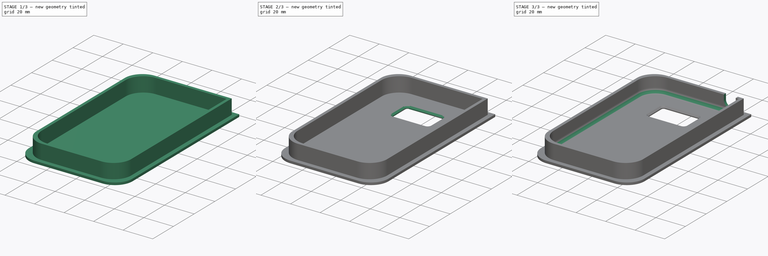
[diagram: build sequence overview — one tinted view per stage of 3, left to right]
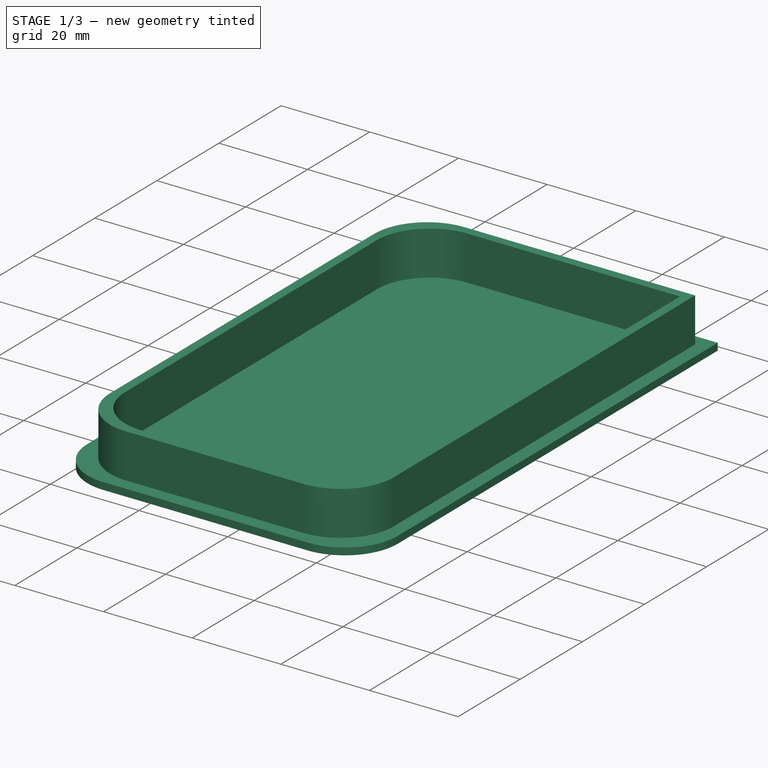
[diagram: stage 1 of 3 — iso view after this stage's code; geometry added in this stage tinted green]
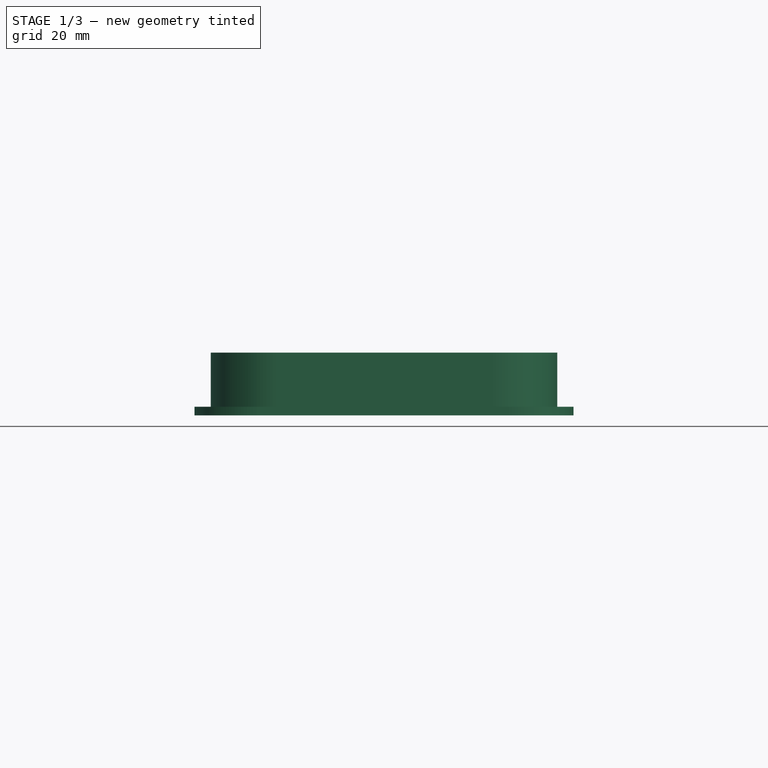
[diagram: stage 1 of 3 — front view after this stage's code; geometry added in this stage tinted green]
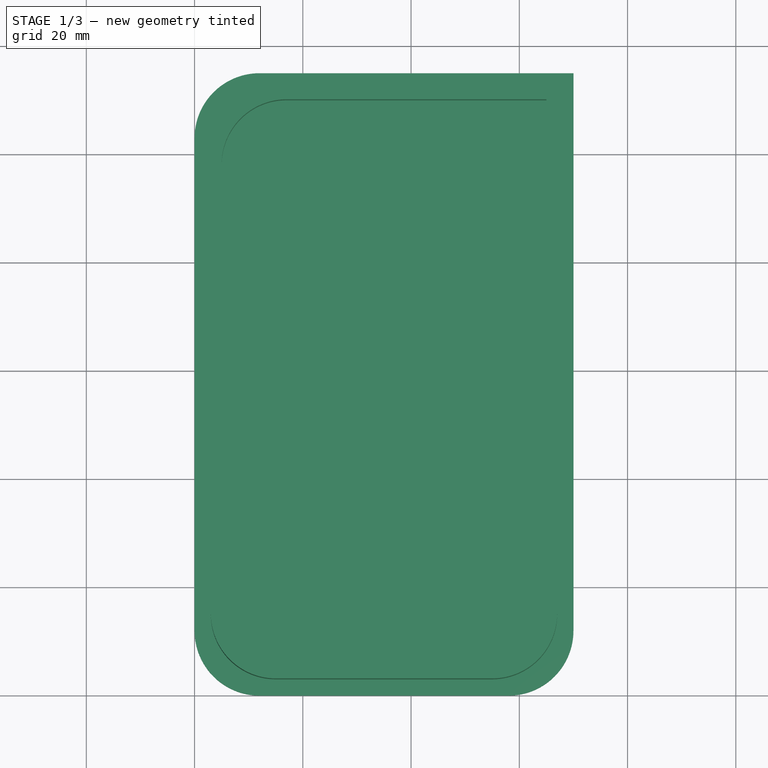
[diagram: stage 1 of 3 — top view after this stage's code; geometry added in this stage tinted green]
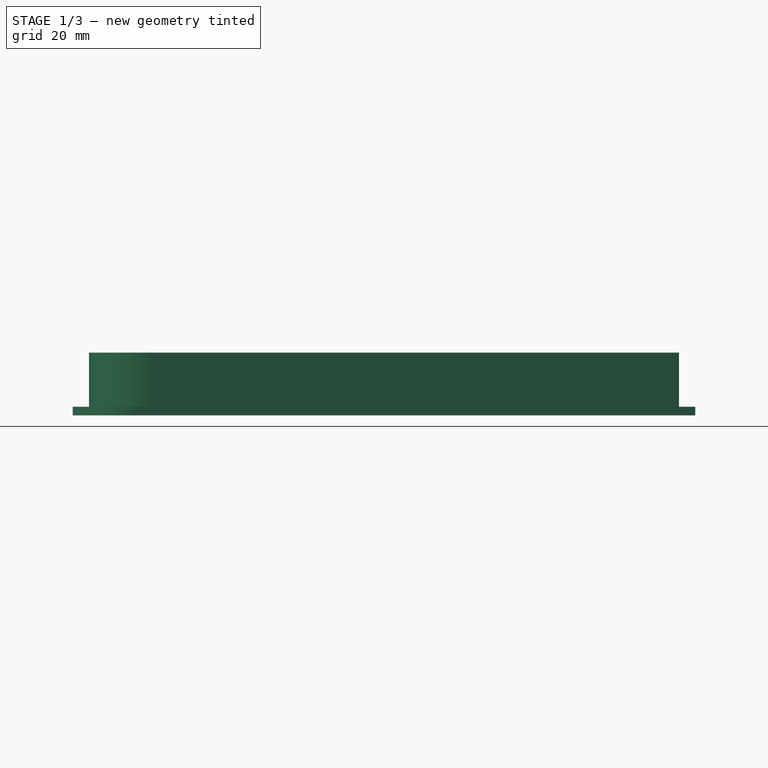
[diagram: stage 1 of 3 — right view after this stage's code; geometry added in this stage tinted green]
FCSTD DOCUMENT  (FreeCAD 0.16R6703 (Git))
Label: terminal_v2_cap
License: All rights reserved
LicenseURL: http://en.wikipedia.org/wiki/All_rights_reserved
objects: Sketcher::SketchObject×5, PartDesign::Pocket×3, PartDesign::Pad×2, PartDesign::Chamfer×1, PartDesign::Fillet×1
note: 17 computed .brp shape members not serialized (recipe doc carries the construction recipe); baked Part::Feature solids carry a one-line shape summary decoded from their .brp

FEATURE [Sketcher::SketchObject] Sketch
  sketch-geometry (7):
    g0: LineSegment StartX=12 StartY=0 StartZ=0 EndX=58 EndY=0 EndZ=0
    g1: LineSegment StartX=70 StartY=12 StartZ=0 EndX=70 EndY=115 EndZ=0
    g2: LineSegment StartX=70 StartY=115 StartZ=0 EndX=12 EndY=115 EndZ=0
    g3: LineSegment StartX=0 StartY=103 StartZ=0 EndX=0 EndY=12 EndZ=0
    g4: ArcOfCircle CenterX=12 CenterY=103 CenterZ=0 NormalX=0 NormalY=0 NormalZ=1 Radius=12 StartAngle=1.5708 EndAngle=3.14159
    g5: ArcOfCircle CenterX=12 CenterY=12 CenterZ=0 NormalX=0 NormalY=0 NormalZ=1 Radius=12 StartAngle=3.14159 EndAngle=4.71239
    g6: ArcOfCircle CenterX=58 CenterY=12 CenterZ=0 NormalX=0 NormalY=0 NormalZ=1 Radius=12 StartAngle=4.71239 EndAngle=6.28319
  constraints (18):
    c: Coincident(g1,g2)
    c: Horizontal(g0)
    c: Horizontal(g2)
    c: Vertical(g1)
    c: Vertical(g3)
    c: Tangent(g2,g4) = -1.5708
    c: Tangent(g3,g4) = -1.5708
    c: Tangent(g0,g5) = -1.5708
    c: Tangent(g3,g5) = -1.5708
    c: Tangent(g1,g6) = -1.5708
    c: Tangent(g0,g6) = -1.5708
    c: DistanceX(g3,g1) = 70
    c: Equal(g4,g5)
    c: Equal(g5,g6)
    c: PointOnObject(g0,g-1)
    c: PointOnObject(g3,g-2)
    c: DistanceY(g0,g1) = 115
    c: Radius(g5) = 12
FEATURE [PartDesign::Pad] Pad
  Length = 1.6
  Length2 = 100
  Sketch = -> Sketch
  Type = 0
FEATURE [Sketcher::SketchObject] Sketch001
  Placement = pos=(0,0,1.6) rot=(0,0,1;0rad)
  Support = -> Pad [Face9]
  sketch-geometry (14):
    g0: LineSegment StartX=15 StartY=3 StartZ=0 EndX=55 EndY=3 EndZ=0
    g1: LineSegment StartX=67 StartY=15 StartZ=0 EndX=67 EndY=112 EndZ=0
    g2: LineSegment StartX=67 StartY=112 StartZ=0 EndX=15 EndY=112 EndZ=0
    g3: LineSegment StartX=3 StartY=100 StartZ=0 EndX=3 EndY=15 EndZ=0
    g4: ArcOfCircle CenterX=15 CenterY=100 CenterZ=0 NormalX=0 NormalY=0 NormalZ=1 Radius=12 StartAngle=1.5708 EndAngle=3.14159
    g5: ArcOfCircle CenterX=15 CenterY=15 CenterZ=0 NormalX=0 NormalY=0 NormalZ=1 Radius=12 StartAngle=3.14159 EndAngle=4.71239
    g6: ArcOfCircle CenterX=55 CenterY=15 CenterZ=0 NormalX=0 NormalY=0 NormalZ=1 Radius=12 StartAngle=4.71239 EndAngle=6.28319
    g7: LineSegment StartX=17 StartY=5 StartZ=0 EndX=53 EndY=5 EndZ=0
    g8: LineSegment StartX=65 StartY=17 StartZ=0 EndX=65 EndY=110 EndZ=0
    g9: LineSegment StartX=65 StartY=110 StartZ=0 EndX=17 EndY=110 EndZ=0
    g10: LineSegment StartX=5 StartY=98 StartZ=0 EndX=5 EndY=17 EndZ=0
    g11: ArcOfCircle CenterX=17 CenterY=98 CenterZ=0 NormalX=0 NormalY=0 NormalZ=1 Radius=12 StartAngle=1.5708 EndAngle=3.14159
    g12: ArcOfCircle CenterX=17 CenterY=17 CenterZ=0 NormalX=0 NormalY=0 NormalZ=1 Radius=12 StartAngle=3.14159 EndAngle=4.71239
    g13: ArcOfCircle CenterX=53 CenterY=17 CenterZ=0 NormalX=0 NormalY=0 NormalZ=1 Radius=12 StartAngle=4.71239 EndAngle=6.28319
  constraints (36):
    c: Coincident(g1,g2)
    c: Horizontal(g0)
    c: Horizontal(g2)
    c: Vertical(g1)
    c: Vertical(g3)
    c: Tangent(g2,g4) = -1.5708
    c: Tangent(g3,g4) = -1.5708
    c: Tangent(g0,g5) = -1.5708
    c: Tangent(g3,g5) = -1.5708
    c: Tangent(g1,g6) = -1.5708
    c: Tangent(g0,g6) = -1.5708
    c: DistanceX(g3,g1) = 64
    c: Equal(g4,g5)
    c: Equal(g5,g6)
    c: DistanceY(g0,g1) = 109
    c: Radius(g5) = 12
    c: DistanceX(g-1,g3) = 3
    c: DistanceY(g-1,g0) = 3
    c: Coincident(g8,g9)
    c: Horizontal(g7)
    c: Horizontal(g9)
    c: Vertical(g8)
    c: Vertical(g10)
    c: Tangent(g9,g11) = -1.5708
    c: Tangent(g10,g11) = -1.5708
    c: Tangent(g7,g12) = -1.5708
    c: Tangent(g10,g12) = -1.5708
    c: Tangent(g8,g13) = -1.5708
    c: Tangent(g7,g13) = -1.5708
    c: DistanceX(g10,g8) = 60
    c: Equal(g11,g12)
    c: Equal(g12,g13)
    c: DistanceY(g7,g8) = 105
    c: Equal(g5,g12) = 12
    c: DistanceX(g8,g1) = 2
    c: DistanceY(g8,g1) = 2
FEATURE [PartDesign::Pad] Pad001
  Length = 10
  Length2 = 100
  Sketch = -> Sketch001
  Type = 0
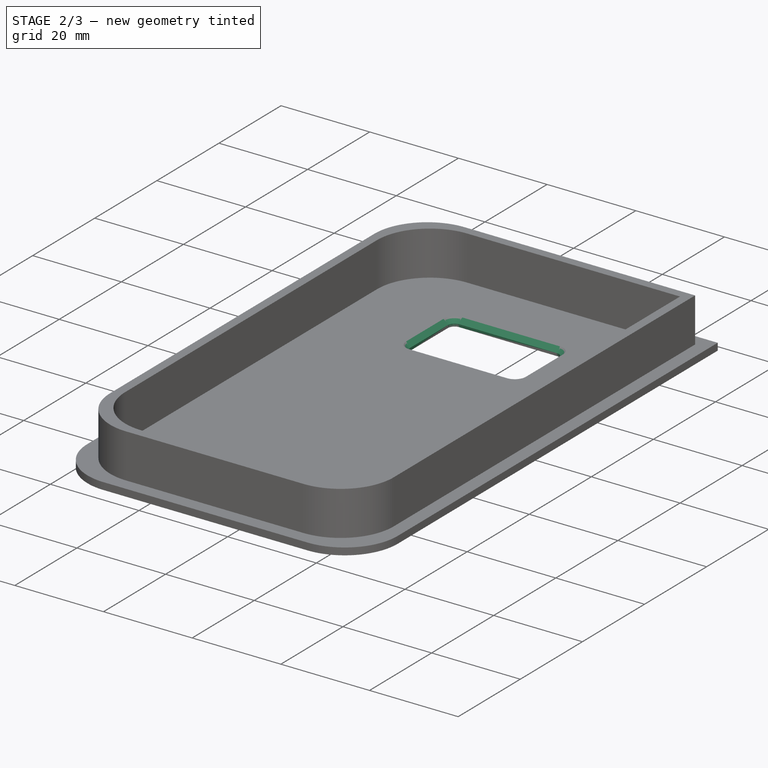
[diagram: stage 2 of 3 — iso view after this stage's code; geometry added in this stage tinted green]
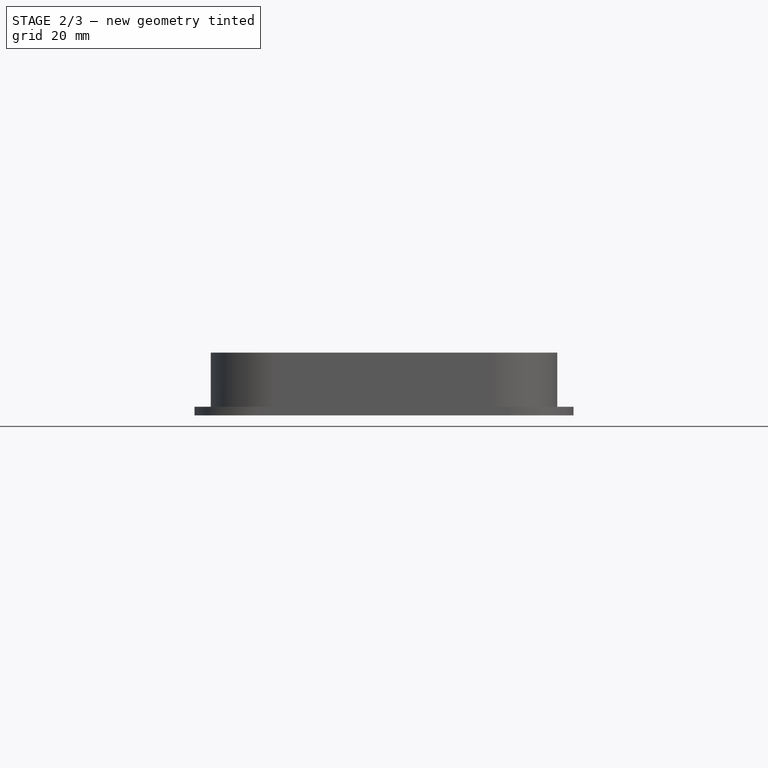
[diagram: stage 2 of 3 — front view after this stage's code; geometry added in this stage tinted green]
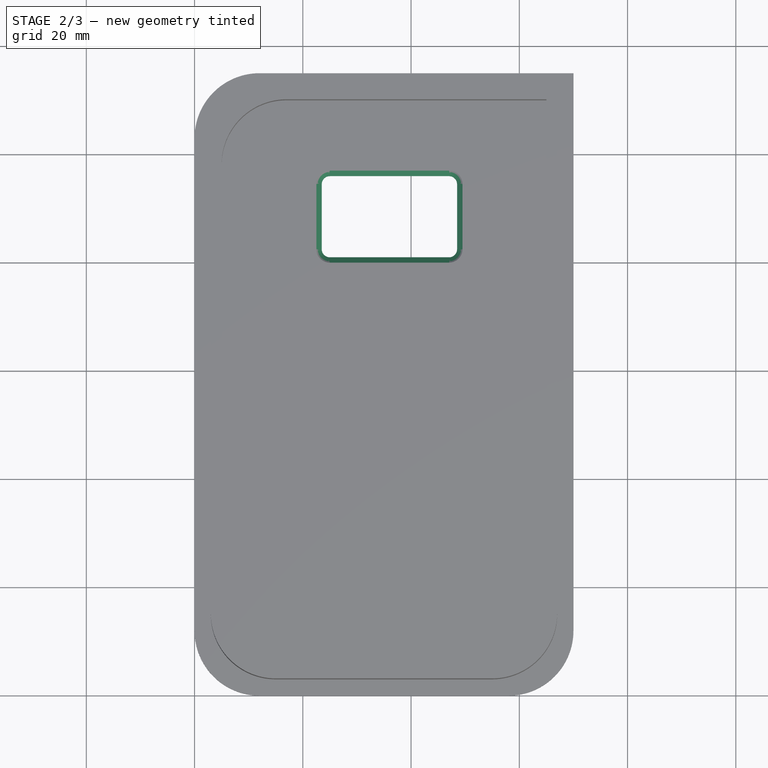
[diagram: stage 2 of 3 — top view after this stage's code; geometry added in this stage tinted green]
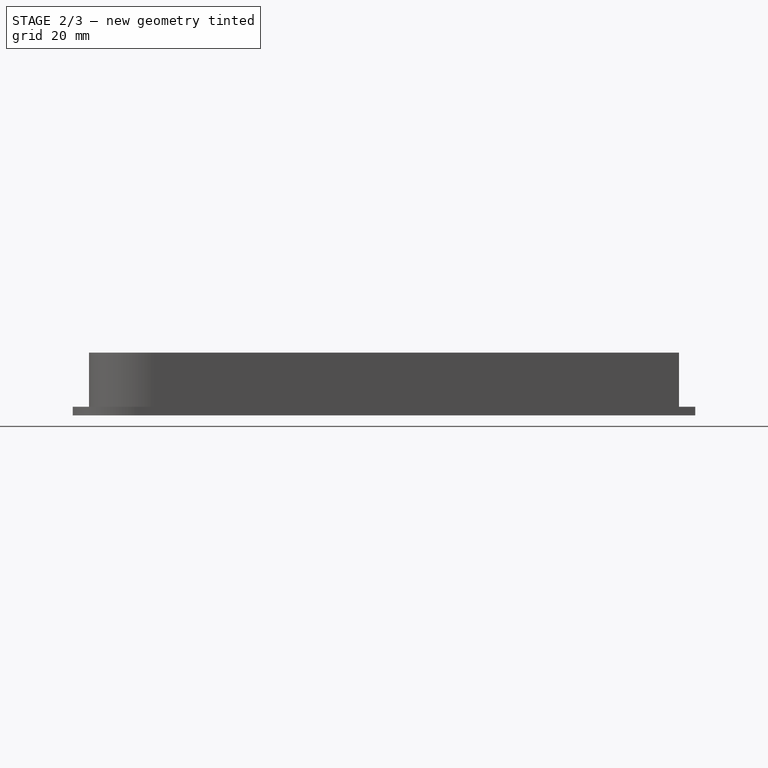
[diagram: stage 2 of 3 — right view after this stage's code; geometry added in this stage tinted green]
FEATURE [Sketcher::SketchObject] Sketch004
  Placement = pos=(67,0,0) rot=(0.57735,0.57735,0.57735;2.0944rad)
  Support = -> Pad001 [Face14]
  sketch-geometry (1):
    g0: Circle CenterX=-62 CenterY=7.1 CenterZ=0 NormalX=0 NormalY=0 NormalZ=1 Radius=1
  constraints (3):
    c: DistanceY(g-1,g0) = 7.1
    c: Radius(g0) = 1
    c: DistanceX(g0,g-1) = 62
FEATURE [PartDesign::Pocket] Pocket
  Length = 5
  Sketch = -> Sketch004
  Type = 1
FEATURE [Sketcher::SketchObject] Sketch005
  Placement = pos=(0,0,1.6) rot=(0,0,1;0rad)
  Support = -> Pocket [Face5]
  sketch-geometry (8):
    g0: LineSegment StartX=25 StartY=96 StartZ=0 EndX=47 EndY=96 EndZ=0
    g1: LineSegment StartX=48.5 StartY=94.5 StartZ=0 EndX=48.5 EndY=82.5 EndZ=0
    g2: LineSegment StartX=47 StartY=81 StartZ=0 EndX=25 EndY=81 EndZ=0
    g3: LineSegment StartX=23.5 StartY=82.5 StartZ=0 EndX=23.5 EndY=94.5 EndZ=0
    g4: ArcOfCircle CenterX=25 CenterY=94.5 CenterZ=0 NormalX=0 NormalY=0 NormalZ=1 Radius=1.5 StartAngle=1.5708 EndAngle=3.14159
    g5: ArcOfCircle CenterX=25 CenterY=82.5 CenterZ=0 NormalX=0 NormalY=0 NormalZ=1 Radius=1.5 StartAngle=3.14159 EndAngle=4.71239
    g6: ArcOfCircle CenterX=47 CenterY=82.5 CenterZ=0 NormalX=0 NormalY=0 NormalZ=1 Radius=1.5 StartAngle=4.71239 EndAngle=6.28319
    g7: ArcOfCircle CenterX=47 CenterY=94.5 CenterZ=0 NormalX=0 NormalY=0 NormalZ=1 Radius=1.5 StartAngle=0 EndAngle=1.5708
  constraints (20):
    c: Horizontal(g0)
    c: Horizontal(g2)
    c: Vertical(g1)
    c: Vertical(g3)
    c: Tangent(g0,g4) = 1.5708
    c: Tangent(g3,g4) = 1.5708
    c: Tangent(g2,g5) = 1.5708
    c: Tangent(g3,g5) = 1.5708
    c: Tangent(g1,g6) = 1.5708
    c: Tangent(g2,g6) = 1.5708
    c: Tangent(g0,g7) = 1.5708
    c: Tangent(g1,g7) = 1.5708
    c: Equal(g4,g5)
    c: Equal(g5,g7)
    c: Equal(g7,g6)
    c: Radius(g7) = 1.5
    c: DistanceX(g3,g1) = 25
    c: DistanceY(g2,g0) = 15
    c: DistanceX(g-1,g3) = 23.5
    c: DistanceY(g-1,g2) = 81
FEATURE [PartDesign::Pocket] Pocket001
  Length = 5
  Sketch = -> Sketch005
  Type = 0
FEATURE [PartDesign::Chamfer] Chamfer
  Base = -> Pocket001 [Edge37,Edge52,Edge50,Edge48,Edge46,Edge44,Edge42,Edge40]
  Size = 1
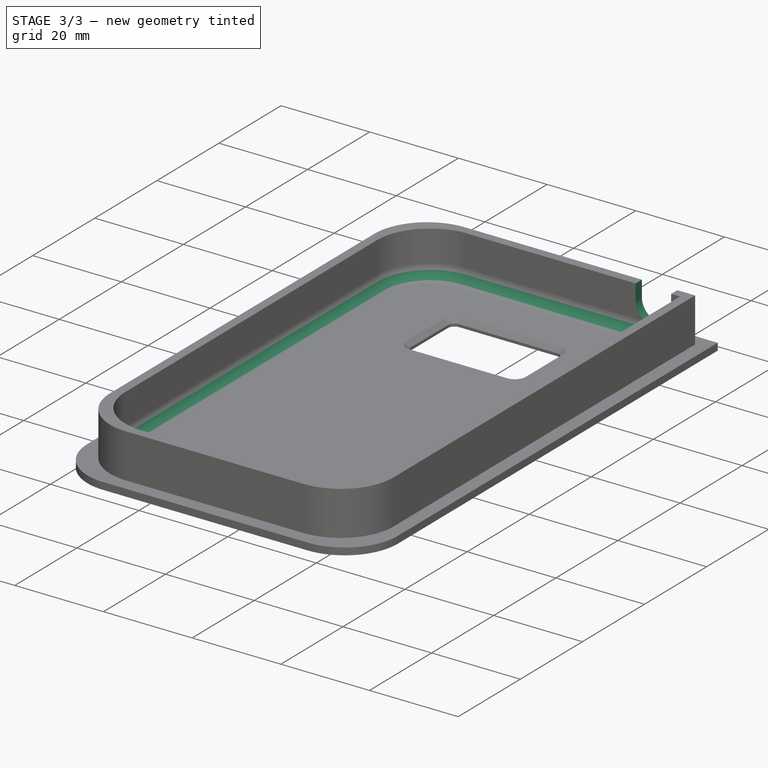
[diagram: stage 3 of 3 — iso view after this stage's code; geometry added in this stage tinted green]
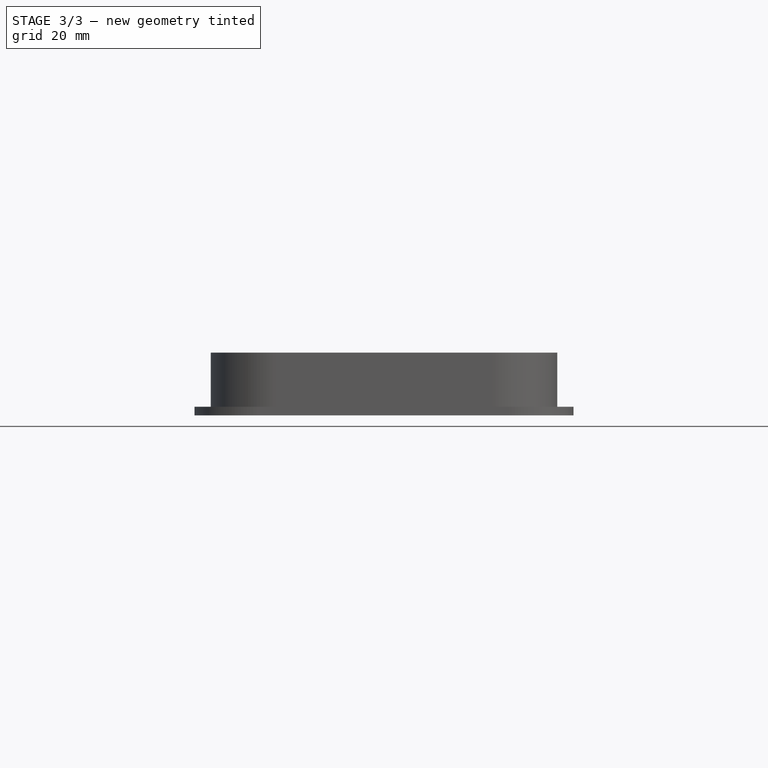
[diagram: stage 3 of 3 — front view after this stage's code; geometry added in this stage tinted green]
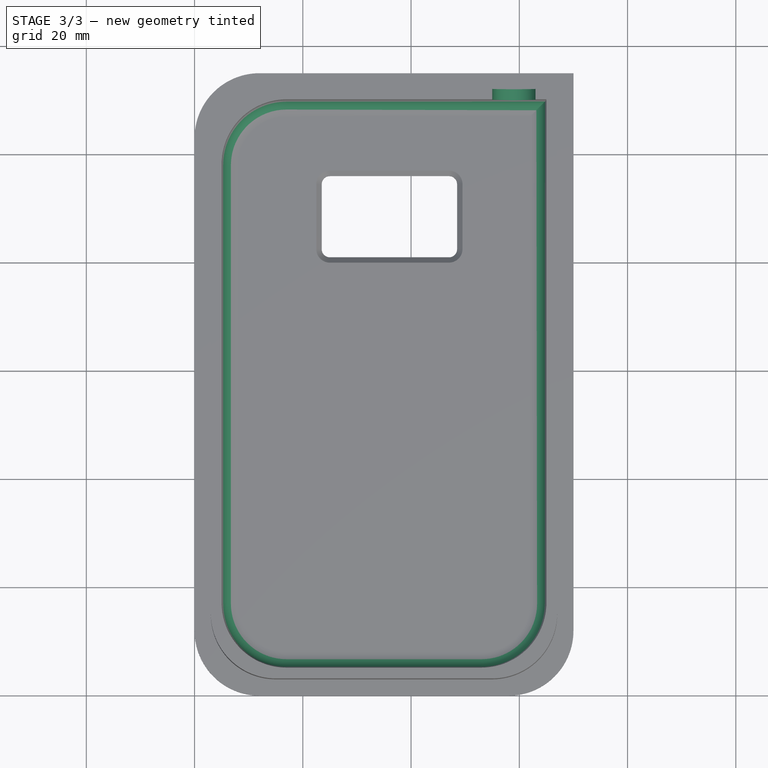
[diagram: stage 3 of 3 — top view after this stage's code; geometry added in this stage tinted green]
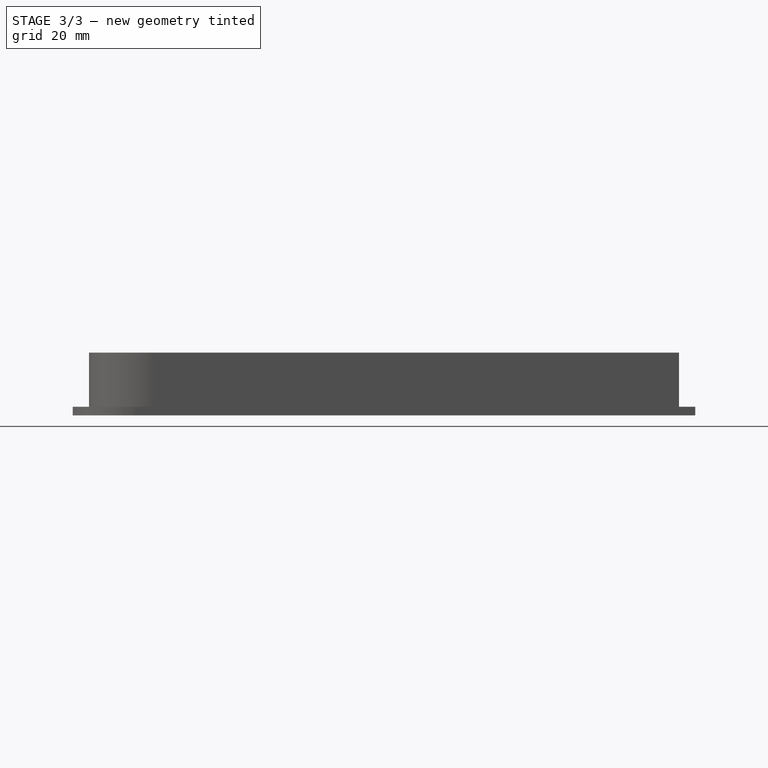
[diagram: stage 3 of 3 — right view after this stage's code; geometry added in this stage tinted green]
FEATURE [PartDesign::Fillet] Fillet
  Base = -> Chamfer [Edge40,Edge38,Edge42,Edge37,Edge39,Edge41]
  Radius = 3
FEATURE [Sketcher::SketchObject] Sketch006
  Placement = pos=(0,112,0) rot=(0,0.707107,0.707107;3.14159rad)
  Support = -> Fillet [Face37]
  sketch-geometry (4):
    g0: ArcOfCircle CenterX=-59 CenterY=18 CenterZ=0 NormalX=0 NormalY=0 NormalZ=1 Radius=4 StartAngle=4e-12 EndAngle=3.14159
    g1: ArcOfCircle CenterX=-59 CenterY=8 CenterZ=0 NormalX=0 NormalY=0 NormalZ=1 Radius=4 StartAngle=3.14159 EndAngle=6.28319
    g2: LineSegment StartX=-63 StartY=18 StartZ=0 EndX=-63 EndY=8 EndZ=0
    g3: LineSegment StartX=-55 StartY=18 StartZ=0 EndX=-55 EndY=8 EndZ=0
  constraints (10):
    c: Tangent(g0,g3) = 1.5708
    c: Tangent(g0,g2) = -1.5708
    c: Tangent(g2,g1) = -1.5708
    c: Tangent(g3,g1) = 1.5708
    c: Vertical(g2)
    c: Equal(g0,g1)
    c: DistanceX(g0,g0) = 8
    c: DistanceY(g-1,g1) = 8
    c: DistanceY(g1,g0) = 10
    c: DistanceX(g1,g-1) = 59
FEATURE [PartDesign::Pocket] Pocket002
  Length = 5
  Sketch = -> Sketch006
  Type = 0
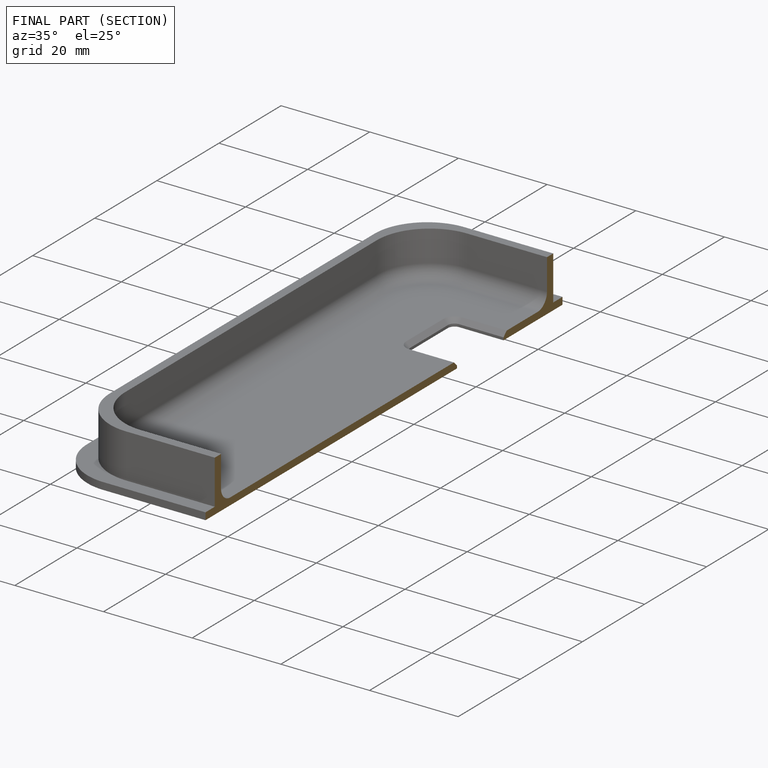
[diagram: finished part — half-section view (interior)]
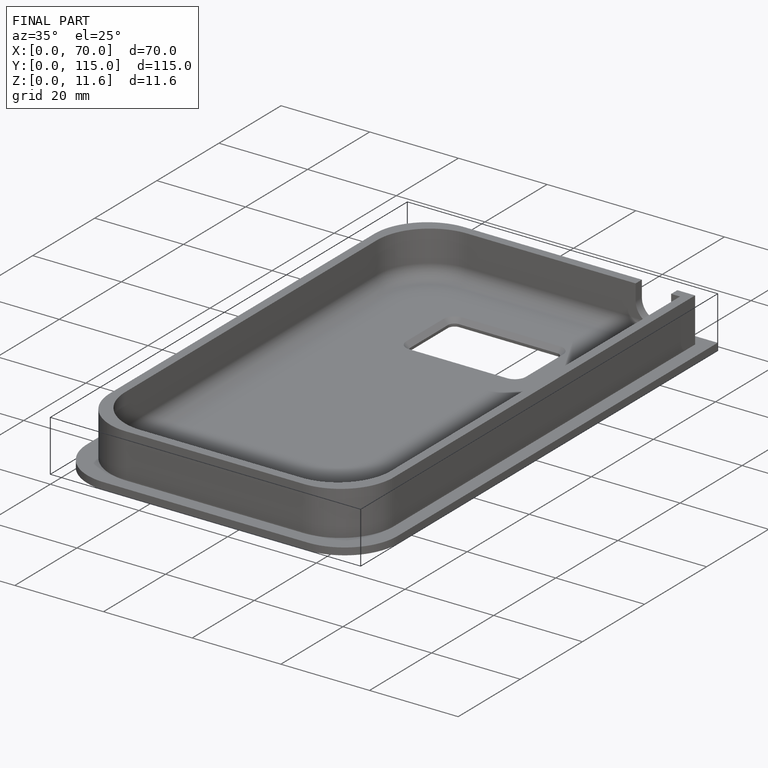
[diagram: finished part — iso view with bounding-box wireframe]
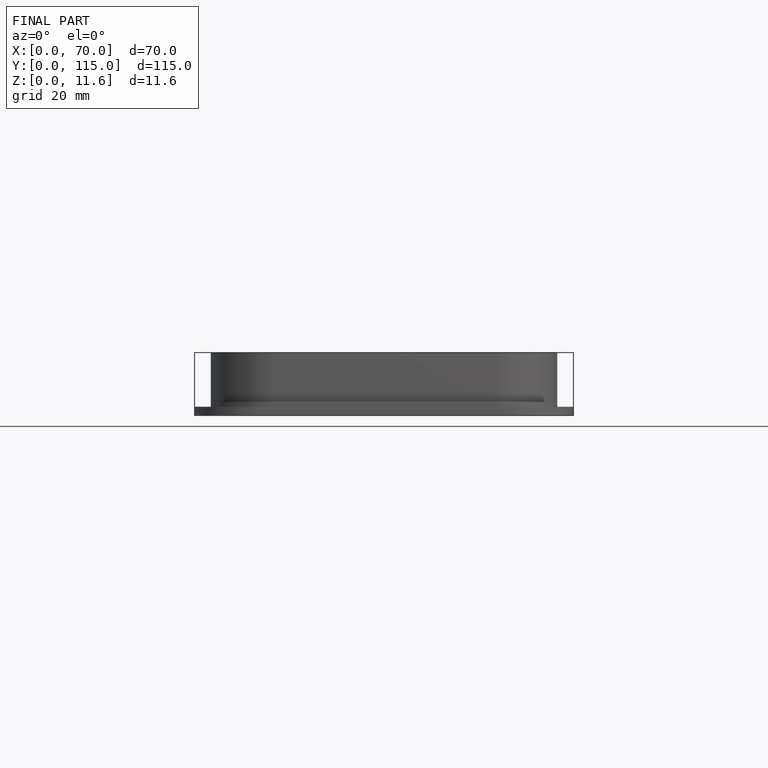
[diagram: finished part — front view with bounding-box wireframe]
